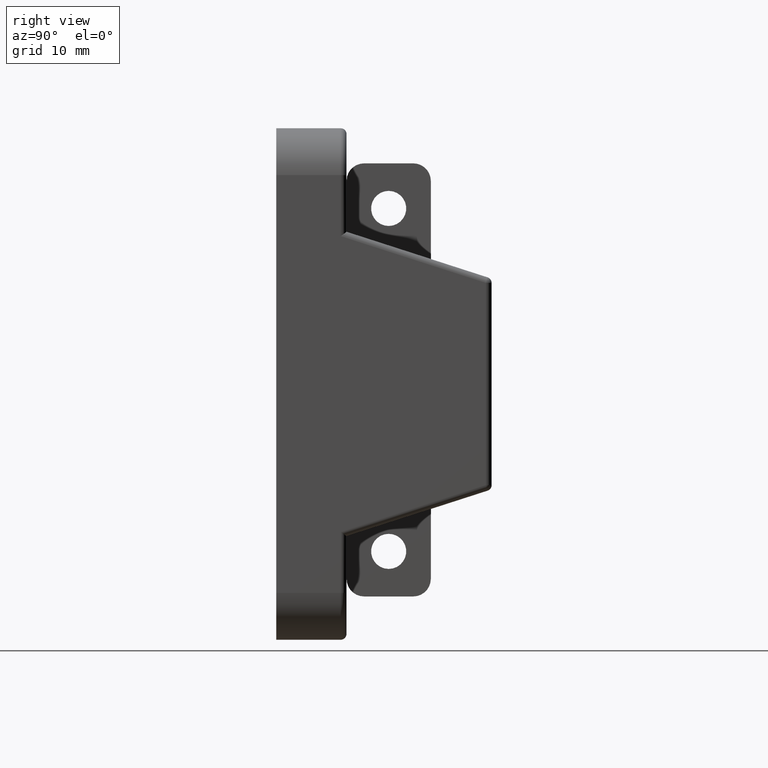
[diagram: clean part render]
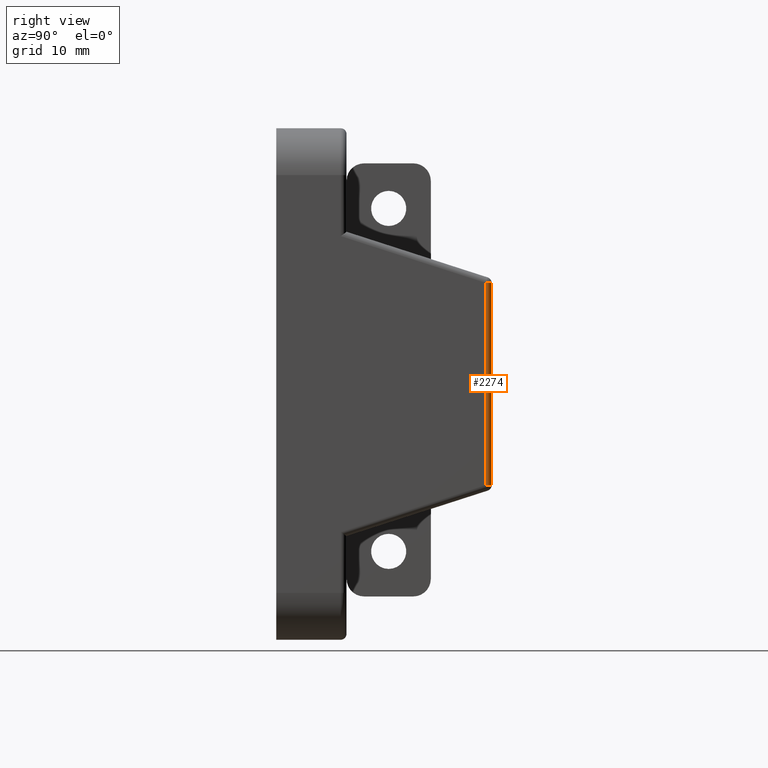
[diagram: same view with one face highlighted and labeled with its STEP entity id]
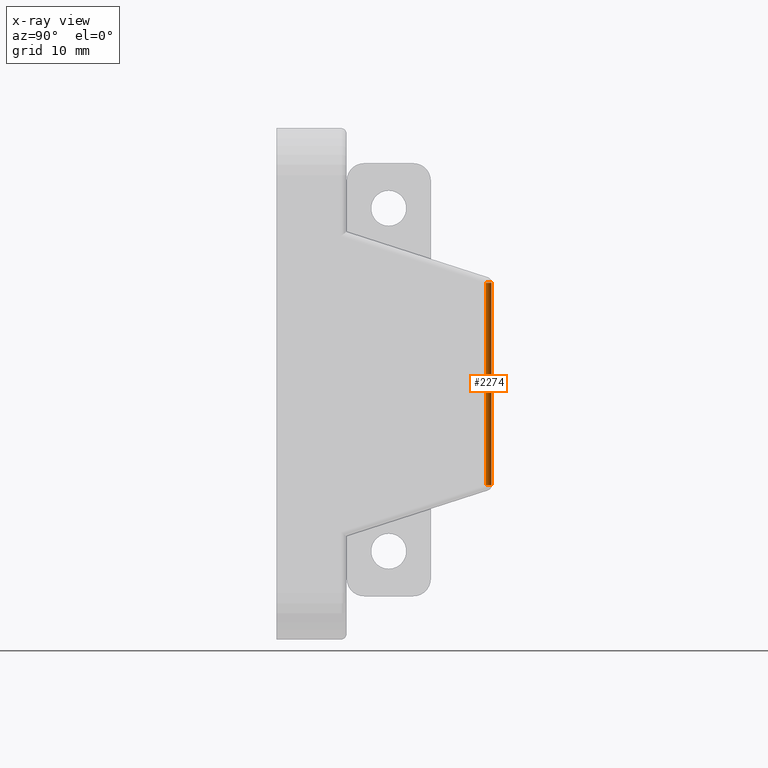
[diagram: x-ray of the same camera — body ghosted, the highlighted face saturated]
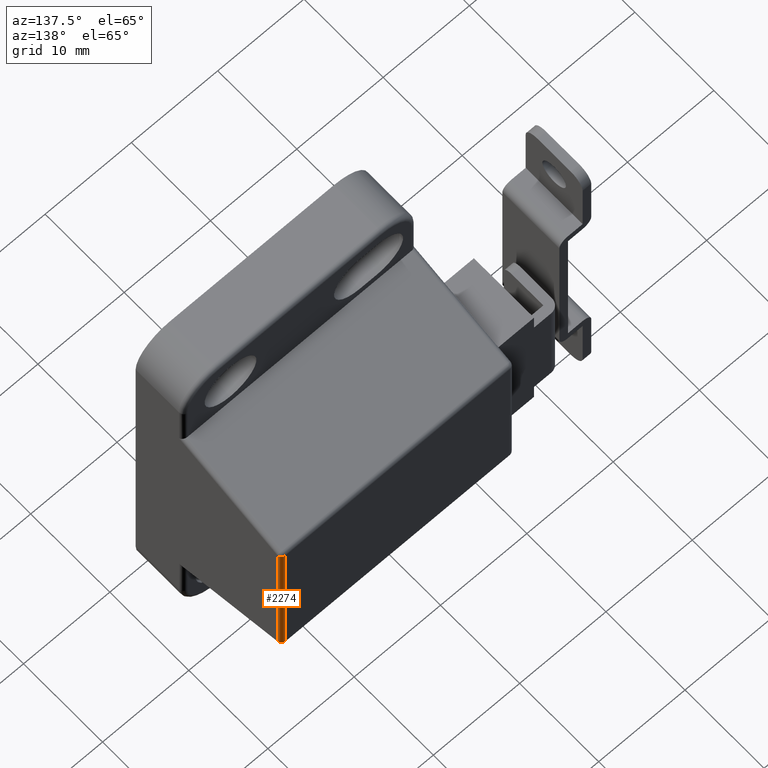
[diagram: same view with one face highlighted and labeled with its STEP entity id]
A machine part, right view. The second image highlights one B-rep face of the part: STEP entity #2274.
The next image is the same camera in x-ray: the body ghosted, the highlighted face saturated — about 0% of this face is hidden behind the body in this view.
A second angle (auxiliary view) of the same face is appended — the face is thin or edge-on in the first view.
In plain terms, the highlighted cylindrical surface (edge-blend (fillet) strip) has radius 0.5 mm, axis along (0, 0, -1).
Its self-contained STEP definition (entity closure, byte-faithful):
#178=LINE('',#3423,#405);
#179=LINE('',#3424,#406);
#405=VECTOR('',#2709,17.2718388725869);
#406=VECTOR('',#2710,17.271838872587);
#629=CYLINDRICAL_SURFACE('',#2432,0.5);
#682=FACE_OUTER_BOUND('',#820,.T.);
#820=EDGE_LOOP('',(#1637,#1638,#1639,#1640));
#985=CIRCLE('',#2420,0.5);
#990=CIRCLE('',#2430,0.499999999999998);
#1080=VERTEX_POINT('',#3394);
#1081=VERTEX_POINT('',#3396);
#1087=VERTEX_POINT('',#3416);
#1089=VERTEX_POINT('',#3419);
#1296=EDGE_CURVE('',#1080,#1081,#985,.F.);
#1306=EDGE_CURVE('',#1089,#1087,#990,.F.);
#1308=EDGE_CURVE('',#1087,#1080,#178,.T.);
#1309=EDGE_CURVE('',#1081,#1089,#179,.T.);
#1637=ORIENTED_EDGE('',*,*,#1306,.T.);
#1638=ORIENTED_EDGE('',*,*,#1308,.T.);
#1639=ORIENTED_EDGE('',*,*,#1296,.T.);
#1640=ORIENTED_EDGE('',*,*,#1309,.T.);
#2274=ADVANCED_FACE('',(#682),#629,.T.);
#2420=AXIS2_PLACEMENT_3D('',#3398,#2679,#2680);
#2430=AXIS2_PLACEMENT_3D('',#3420,#2703,#2704);
#2432=AXIS2_PLACEMENT_3D('',#3422,#2707,#2708);
#2679=DIRECTION('center_axis',(1.,0.,0.));
#2680=DIRECTION('ref_axis',(0.,1.,0.));
#2703=DIRECTION('center_axis',(-1.,8.88178419700124E-15,0.));
#2704=DIRECTION('ref_axis',(0.,0.,-1.));
#2707=DIRECTION('center_axis',(-1.,0.,-2.48789473305357E-16));
#2708=DIRECTION('ref_axis',(1.75920723662047E-16,0.707106781186551,-0.707106781186544));
#2709=DIRECTION('',(1.,0.,2.48789473305357E-16));
#2710=DIRECTION('',(-1.,0.,-2.48789473305357E-16));
#3394=CARTESIAN_POINT('',(8.63591943629348,18.4,-26.5));
#3396=CARTESIAN_POINT('',(8.63591943629348,17.9,-27.));
#3398=CARTESIAN_POINT('Origin',(8.63591943629348,17.9,-26.5));
#3416=CARTESIAN_POINT('',(-8.63591943629346,18.4,-26.5));
#3419=CARTESIAN_POINT('',(-8.63591943629347,17.9,-27.));
#3420=CARTESIAN_POINT('Origin',(-8.63591943629347,17.9,-26.5));
#3422=CARTESIAN_POINT('Origin',(4.42500000000001,17.9,-26.5));
#3423=CARTESIAN_POINT('',(4.42500000000001,18.4,-26.5));
#3424=CARTESIAN_POINT('',(4.42500000000001,17.9,-27.));